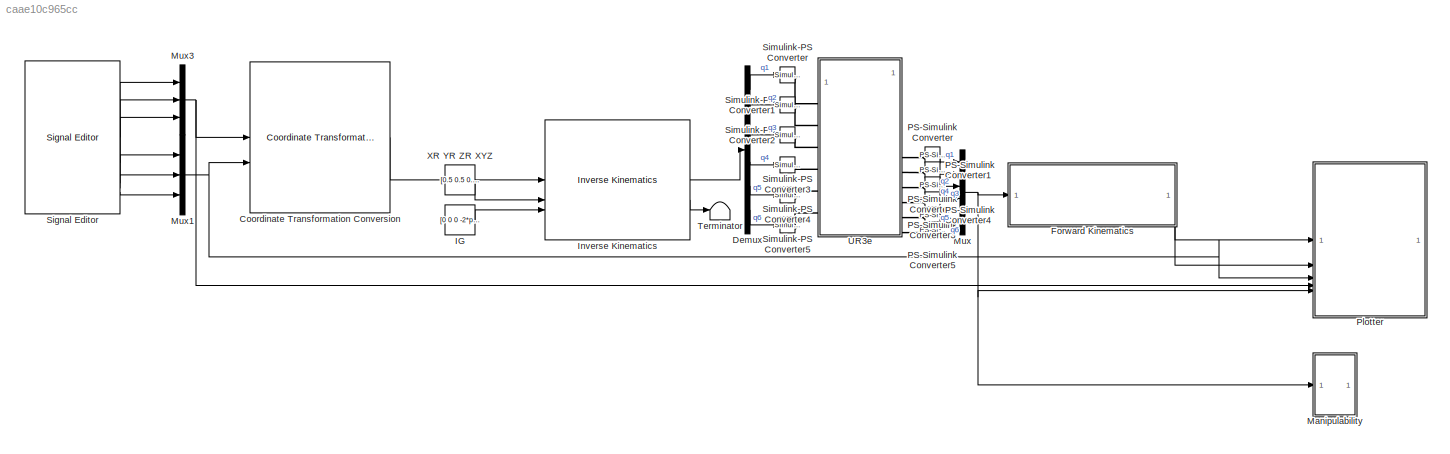
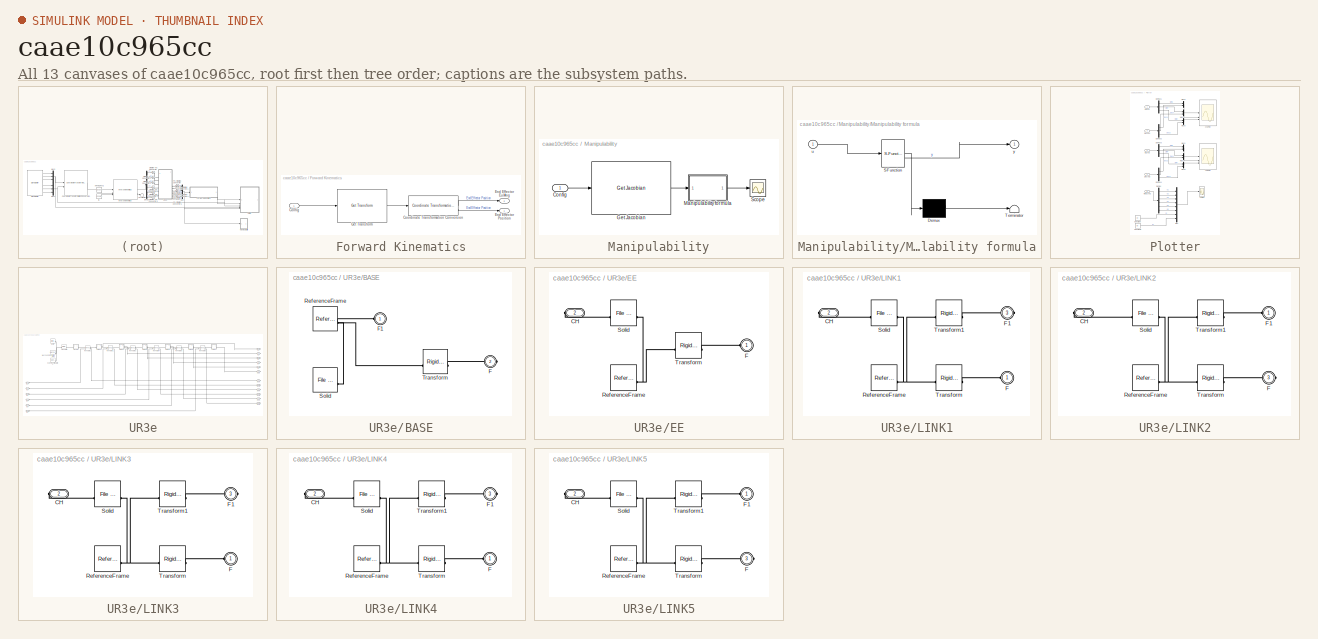
[diagram: thumbnail index - all 13 canvases of the model, root first then tree order]
MODEL slx_caae10c965cc
KIND model
CONFIG AbsTol = auto
CONFIG EnableMultiTasking = off
CONFIG FixedStep = auto
CONFIG MaxStep = auto
CONFIG MinStep = auto
CONFIG RelTol = 1e-3
CONFIG SampleTimeConstraint = Unconstrained
CONFIG SolverName = VariableStepAuto
CONFIG StartTime = 0.0
CONFIG StopTime = 8
WORKSPACE source: external: MATLAB File  (data not in archive)
BLOCK [Reference] Coordinate Transformation Conversion  REF=robotcorelib/Coordinate Transformation Conversion
  LibrarySourceBlock = robotutilslib/Coordinate Transformation Conversion
  SourceBlock = robotcorelib/Coordinate Transformation Conversion
  SourceType = robotics.slcore.internal.block.CoordinateTransformationConversion
BLOCK [Demux] Demux
  Outputs = 6
BLOCK [SubSystem] Forward Kinematics
BLOCK [Inport] Forward Kinematics/Config
BLOCK [Reference] Forward Kinematics/Coordinate Transformation Conversion  REF=robotcorelib/Coordinate Transformation Conversion
  LibrarySourceBlock = robotutilslib/Coordinate Transformation Conversion
  SourceBlock = robotcorelib/Coordinate Transformation Conversion
  SourceType = robotics.slcore.internal.block.CoordinateTransformationConversion
BLOCK [Outport] Forward Kinematics/End Effector EulAng
  Port = 2
  Unit = rad
BLOCK [Outport] Forward Kinematics/End Effector Position
  Unit = m
BLOCK [Reference] Forward Kinematics/Get Transform  REF=robotmaniplib/Get Transform
  SourceBlock = robotmaniplib/Get Transform
  SourceType = Get Transform
BLOCK [Constant] IG
  Value = [0 0 0 -2*pi 0 0]
BLOCK [Reference] Inverse Kinematics  REF=robotmaniplib/Inverse Kinematics
  SourceBlock = robotmaniplib/Inverse Kinematics
  SourceType = Inverse Kinematics
BLOCK [SubSystem] Manipulability
BLOCK [Inport] Manipulability/Config
BLOCK [Reference] Manipulability/Get Jacobian  REF=robotmaniplib/Get Jacobian
  SourceBlock = robotmaniplib/Get Jacobian
  SourceType = Get Jacobian
BLOCK [SubSystem] Manipulability/Manipulability formula
  ErrorFcn = Stateflow.Translate.translate
  PermitHierarchicalResolution = ExplicitOnly
  SFBlockType = MATLAB Function
  TreatAsAtomicUnit = on
BLOCK [Demux] Manipulability/Manipulability formula/ Demux 
  Outputs = 1
BLOCK [S-Function] Manipulability/Manipulability formula/ SFunction 
  EnableBusSupport = on
  FunctionName = sf_sfun
  PortCounts = [1 2]
  SFcnIsStateOwnerBlock = off
  SFunctionDeploymentMode = off
  Tag = Stateflow S-Function 2
BLOCK [Terminator] Manipulability/Manipulability formula/ Terminator 
BLOCK [Inport] Manipulability/Manipulability formula/u
BLOCK [Outport] Manipulability/Manipulability formula/y
BLOCK [Scope] Manipulability/Scope
  Floating = off
  NumInputPorts = 1
  ScopeSpecificationString = Simulink.scopes.TimeScopeBlockCfg('CurrentConfiguration', extmgr.ConfigurationSet(extmgr.Configuration('Core','General UI',true,'FigureColor',[1 1 1]),extmgr.Configuration('Core','Source UI',true),extmgr.Configuration('Sources','WiredSimulink',true,'DataLoggingVariableName','ScopeData1'),extmgr.Configuration('Visuals','Time Domain',true,'SerializedDisplays',{struct('MinYLimReal','0','MaxYLimReal',...<+1701ch>
BLOCK [Mux] Mux
  DisplayOption = bar
  Inputs = 6
BLOCK [Mux] Mux1
  DisplayOption = bar
  Inputs = 3
BLOCK [Mux] Mux3
  DisplayOption = bar
  Inputs = 3
BLOCK [Reference] PS-Simulink Converter  REF=nesl_utility/PS-Simulink
Converter
  SourceBlock = nesl_utility/PS-Simulink\nConverter
  SourceType = PS-Simulink\nConverter
BLOCK [Reference] PS-Simulink Converter1  REF=nesl_utility/PS-Simulink
Converter
  SourceBlock = nesl_utility/PS-Simulink\nConverter
  SourceType = PS-Simulink\nConverter
BLOCK [Reference] PS-Simulink Converter2  REF=nesl_utility/PS-Simulink
Converter
  SourceBlock = nesl_utility/PS-Simulink\nConverter
  SourceType = PS-Simulink\nConverter
BLOCK [Reference] PS-Simulink Converter3  REF=nesl_utility/PS-Simulink
Converter
  SourceBlock = nesl_utility/PS-Simulink\nConverter
  SourceType = PS-Simulink\nConverter
BLOCK [Reference] PS-Simulink Converter4  REF=nesl_utility/PS-Simulink
Converter
  SourceBlock = nesl_utility/PS-Simulink\nConverter
  SourceType = PS-Simulink\nConverter
BLOCK [Reference] PS-Simulink Converter5  REF=nesl_utility/PS-Simulink
Converter
  SourceBlock = nesl_utility/PS-Simulink\nConverter
  SourceType = PS-Simulink\nConverter
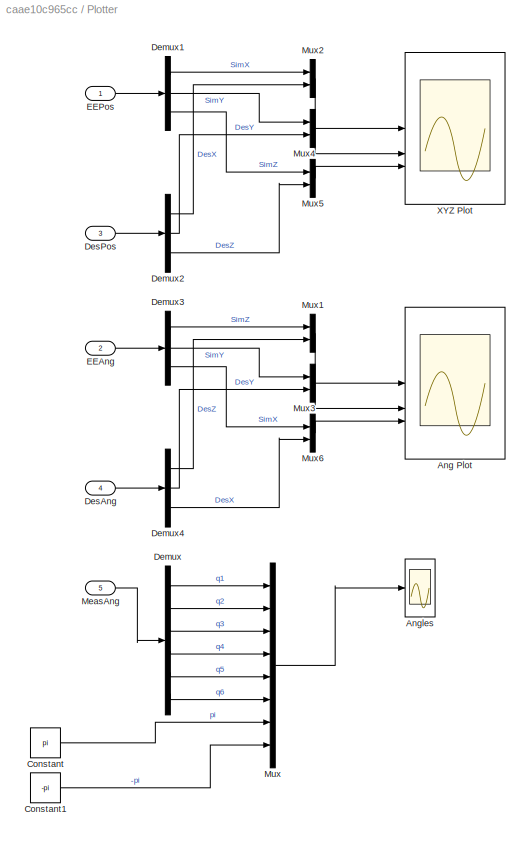
BLOCK [SubSystem] Plotter
BLOCK [Scope] Plotter/Ang Plot
  Floating = off
  NumInputPorts = 3
  ScopeSpecificationString = Simulink.scopes.TimeScopeBlockCfg('CurrentConfiguration', extmgr.ConfigurationSet(extmgr.Configuration('Core','General UI',true,'FigureColor',[1 1 1]),extmgr.Configuration('Core','Source UI',true),extmgr.Configuration('Sources','WiredSimulink',true,'DataLoggingVariableName','ScopeData1'),extmgr.Configuration('Visuals','Time Domain',true,'SerializedDisplays',{struct('MinYLimReal','-pi','MaxYLimReal...<+3735ch>
BLOCK [Scope] Plotter/Angles
  Floating = off
  NumInputPorts = 1
  ScopeSpecificationString = Simulink.scopes.TimeScopeBlockCfg('CurrentConfiguration', extmgr.ConfigurationSet(extmgr.Configuration('Core','General UI',true),extmgr.Configuration('Core','Source UI',true),extmgr.Configuration('Sources','WiredSimulink',true,'DataLoggingVariableName','ScopeData1'),extmgr.Configuration('Visuals','Time Domain',true,'SerializedDisplays',{struct('MinYLimReal','-3*pi/2','MaxYLimReal','3*pi/2','YLabel...<+1848ch>
BLOCK [Constant] Plotter/Constant
  Value = pi
BLOCK [Constant] Plotter/Constant1
  Value = -pi
BLOCK [Demux] Plotter/Demux
  Outputs = 6
BLOCK [Demux] Plotter/Demux1
  Outputs = 3
BLOCK [Demux] Plotter/Demux2
  Outputs = 3
BLOCK [Demux] Plotter/Demux3
  Outputs = 3
BLOCK [Demux] Plotter/Demux4
  Outputs = 3
BLOCK [Inport] Plotter/DesAng
  Port = 4
BLOCK [Inport] Plotter/DesPos
  Port = 3
BLOCK [Inport] Plotter/EEAng
  Port = 2
BLOCK [Inport] Plotter/EEPos
BLOCK [Inport] Plotter/MeasAng
  Port = 5
BLOCK [Mux] Plotter/Mux
  DisplayOption = bar
  Inputs = 8
BLOCK [Mux] Plotter/Mux1
  DisplayOption = bar
  Inputs = 2
BLOCK [Mux] Plotter/Mux2
  DisplayOption = bar
  Inputs = 2
BLOCK [Mux] Plotter/Mux3
  DisplayOption = bar
  Inputs = 2
BLOCK [Mux] Plotter/Mux4
  DisplayOption = bar
  Inputs = 2
BLOCK [Mux] Plotter/Mux5
  DisplayOption = bar
  Inputs = 2
BLOCK [Mux] Plotter/Mux6
  DisplayOption = bar
  Inputs = 2
BLOCK [Scope] Plotter/XYZ Plot
  Floating = off
  NumInputPorts = 3
  ScopeSpecificationString = Simulink.scopes.TimeScopeBlockCfg('CurrentConfiguration', extmgr.ConfigurationSet(extmgr.Configuration('Core','General UI',true,'FigureColor',[1 1 1]),extmgr.Configuration('Core','Source UI',true),extmgr.Configuration('Sources','WiredSimulink',true),extmgr.Configuration('Visuals','Time Domain',true,'SerializedDisplays',{struct('MinYLimReal','-0.21436','MaxYLimReal','-0.17072','YLabelReal','Positio...<+3680ch>
BLOCK [Reference] Signal Editor  REF=SignalEditorBlockLib/Signal Editor
  LibrarySourceBlock = simulink/Sources/Signal Editor
  SourceBlock = SignalEditorBlockLib/Signal Editor
  SourceType = SignalEditor
  UserDataPersistent = on
BLOCK [Reference] Simulink-PS Converter  REF=nesl_utility/Simulink-PS
Converter
  SourceBlock = nesl_utility/Simulink-PS\nConverter
  SourceType = Simulink-PS\nConverter
BLOCK [Reference] Simulink-PS Converter1  REF=nesl_utility/Simulink-PS
Converter
  SourceBlock = nesl_utility/Simulink-PS\nConverter
  SourceType = Simulink-PS\nConverter
BLOCK [Reference] Simulink-PS Converter2  REF=nesl_utility/Simulink-PS
Converter
  SourceBlock = nesl_utility/Simulink-PS\nConverter
  SourceType = Simulink-PS\nConverter
BLOCK [Reference] Simulink-PS Converter3  REF=nesl_utility/Simulink-PS
Converter
  SourceBlock = nesl_utility/Simulink-PS\nConverter
  SourceType = Simulink-PS\nConverter
BLOCK [Reference] Simulink-PS Converter4  REF=nesl_utility/Simulink-PS
Converter
  SourceBlock = nesl_utility/Simulink-PS\nConverter
  SourceType = Simulink-PS\nConverter
BLOCK [Reference] Simulink-PS Converter5  REF=nesl_utility/Simulink-PS
Converter
  SourceBlock = nesl_utility/Simulink-PS\nConverter
  SourceType = Simulink-PS\nConverter
BLOCK [Terminator] Terminator
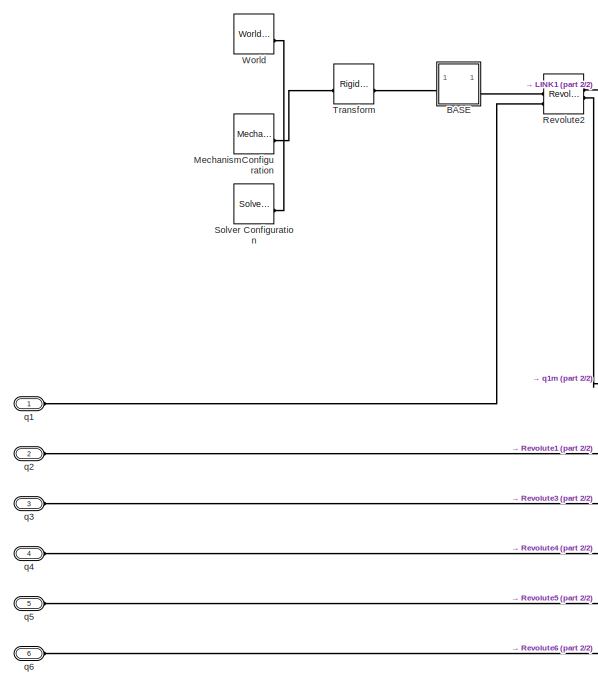
[diagram: UR3e - part 1/2, left side, full height]
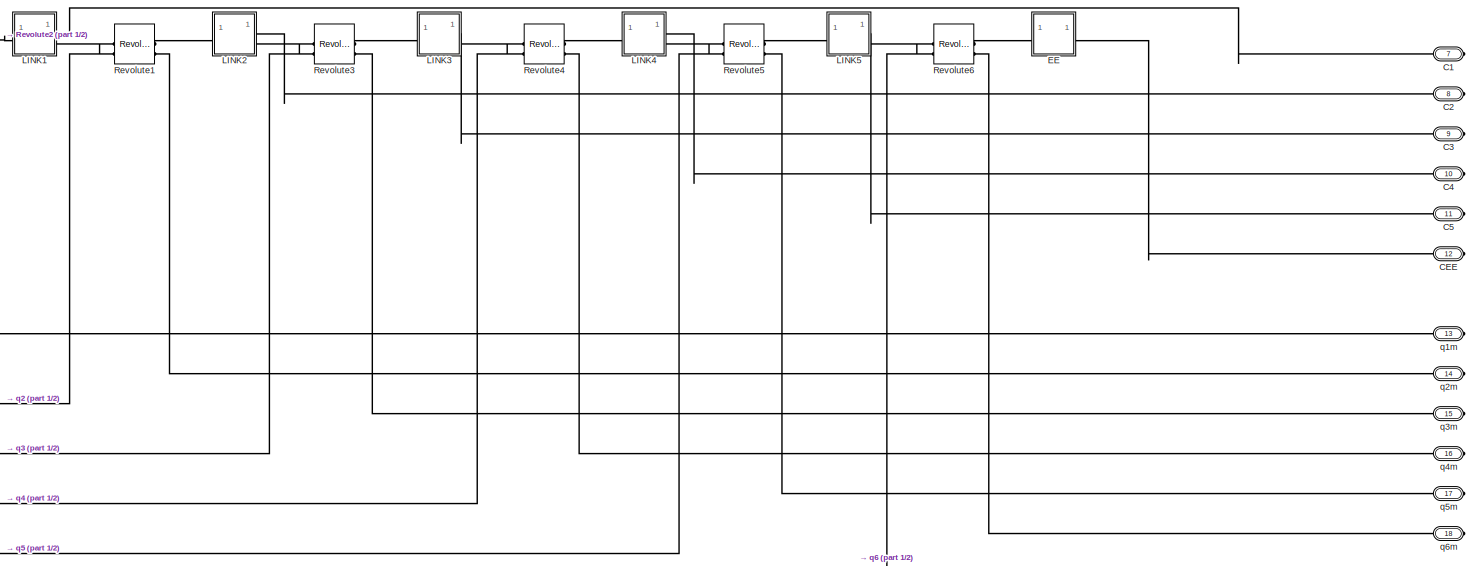
[diagram: UR3e - part 2/2, center side, full height]
BLOCK [SubSystem] UR3e
BLOCK [SubSystem] UR3e/BASE
BLOCK [PMIOPort] UR3e/BASE/F
  Port = 2
  Side = Right
BLOCK [PMIOPort] UR3e/BASE/F1
  Side = Left
BLOCK [Reference] UR3e/BASE/ReferenceFrame  REF=sm_lib/Frames and
Transforms/Reference
Frame
  SourceBlock = sm_lib/Frames and\nTransforms/Reference\nFrame
  SourceType = Reference\nFrame
BLOCK [Reference] UR3e/BASE/Solid  REF=sm_lib/Body Elements/File Solid
  SourceBlock = sm_lib/Body Elements/File Solid
  SourceType = File Solid
BLOCK [Reference] UR3e/BASE/Transform  REF=sm_lib/Frames and
Transforms/Rigid
Transform
  SourceBlock = sm_lib/Frames and\nTransforms/Rigid\nTransform
  SourceType = Rigid\nTransform
BLOCK [PMIOPort] UR3e/C1
  Port = 7
  Side = Right
BLOCK [PMIOPort] UR3e/C2
  Port = 8
  Side = Right
BLOCK [PMIOPort] UR3e/C3
  Port = 9
  Side = Right
BLOCK [PMIOPort] UR3e/C4
  Port = 10
  Side = Right
BLOCK [PMIOPort] UR3e/C5
  Port = 11
  Side = Right
BLOCK [PMIOPort] UR3e/CEE
  Port = 12
  Side = Right
BLOCK [SubSystem] UR3e/EE
BLOCK [PMIOPort] UR3e/EE/CH
  Port = 2
  Side = Right
BLOCK [PMIOPort] UR3e/EE/F
  Side = Left
BLOCK [Reference] UR3e/EE/ReferenceFrame  REF=sm_lib/Frames and
Transforms/Reference
Frame
  SourceBlock = sm_lib/Frames and\nTransforms/Reference\nFrame
  SourceType = Reference\nFrame
BLOCK [Reference] UR3e/EE/Solid  REF=sm_lib/Body Elements/File Solid
  SourceBlock = sm_lib/Body Elements/File Solid
  SourceType = File Solid
BLOCK [Reference] UR3e/EE/Transform  REF=sm_lib/Frames and
Transforms/Rigid
Transform
  SourceBlock = sm_lib/Frames and\nTransforms/Rigid\nTransform
  SourceType = Rigid\nTransform
BLOCK [SubSystem] UR3e/LINK1
BLOCK [PMIOPort] UR3e/LINK1/CH
  Port = 2
  Side = Right
BLOCK [PMIOPort] UR3e/LINK1/F
  Side = Left
BLOCK [PMIOPort] UR3e/LINK1/F1
  Port = 3
  Side = Right
BLOCK [Reference] UR3e/LINK1/ReferenceFrame  REF=sm_lib/Frames and
Transforms/Reference
Frame
  SourceBlock = sm_lib/Frames and\nTransforms/Reference\nFrame
  SourceType = Reference\nFrame
BLOCK [Reference] UR3e/LINK1/Solid  REF=sm_lib/Body Elements/File Solid
  SourceBlock = sm_lib/Body Elements/File Solid
  SourceType = File Solid
BLOCK [Reference] UR3e/LINK1/Transform  REF=sm_lib/Frames and
Transforms/Rigid
Transform
  SourceBlock = sm_lib/Frames and\nTransforms/Rigid\nTransform
  SourceType = Rigid\nTransform
BLOCK [Reference] UR3e/LINK1/Transform1  REF=sm_lib/Frames and
Transforms/Rigid
Transform
  SourceBlock = sm_lib/Frames and\nTransforms/Rigid\nTransform
  SourceType = Rigid\nTransform
BLOCK [SubSystem] UR3e/LINK2
BLOCK [PMIOPort] UR3e/LINK2/CH
  Port = 2
  Side = Right
BLOCK [PMIOPort] UR3e/LINK2/F
  Port = 3
  Side = Right
BLOCK [PMIOPort] UR3e/LINK2/F1
  Side = Left
BLOCK [Reference] UR3e/LINK2/ReferenceFrame  REF=sm_lib/Frames and
Transforms/Reference
Frame
  SourceBlock = sm_lib/Frames and\nTransforms/Reference\nFrame
  SourceType = Reference\nFrame
BLOCK [Reference] UR3e/LINK2/Solid  REF=sm_lib/Body Elements/File Solid
  SourceBlock = sm_lib/Body Elements/File Solid
  SourceType = File Solid
BLOCK [Reference] UR3e/LINK2/Transform  REF=sm_lib/Frames and
Transforms/Rigid
Transform
  SourceBlock = sm_lib/Frames and\nTransforms/Rigid\nTransform
  SourceType = Rigid\nTransform
BLOCK [Reference] UR3e/LINK2/Transform1  REF=sm_lib/Frames and
Transforms/Rigid
Transform
  SourceBlock = sm_lib/Frames and\nTransforms/Rigid\nTransform
  SourceType = Rigid\nTransform
BLOCK [SubSystem] UR3e/LINK3
BLOCK [PMIOPort] UR3e/LINK3/CH
  Port = 2
  Side = Right
BLOCK [PMIOPort] UR3e/LINK3/F
  Side = Left
BLOCK [PMIOPort] UR3e/LINK3/F1
  Port = 3
  Side = Right
BLOCK [Reference] UR3e/LINK3/ReferenceFrame  REF=sm_lib/Frames and
Transforms/Reference
Frame
  SourceBlock = sm_lib/Frames and\nTransforms/Reference\nFrame
  SourceType = Reference\nFrame
BLOCK [Reference] UR3e/LINK3/Solid  REF=sm_lib/Body Elements/File Solid
  SourceBlock = sm_lib/Body Elements/File Solid
  SourceType = File Solid
BLOCK [Reference] UR3e/LINK3/Transform  REF=sm_lib/Frames and
Transforms/Rigid
Transform
  SourceBlock = sm_lib/Frames and\nTransforms/Rigid\nTransform
  SourceType = Rigid\nTransform
BLOCK [Reference] UR3e/LINK3/Transform1  REF=sm_lib/Frames and
Transforms/Rigid
Transform
  SourceBlock = sm_lib/Frames and\nTransforms/Rigid\nTransform
  SourceType = Rigid\nTransform
BLOCK [SubSystem] UR3e/LINK4
BLOCK [PMIOPort] UR3e/LINK4/CH
  Port = 2
  Side = Right
BLOCK [PMIOPort] UR3e/LINK4/F
  Side = Left
BLOCK [PMIOPort] UR3e/LINK4/F1
  Port = 3
  Side = Right
BLOCK [Reference] UR3e/LINK4/ReferenceFrame  REF=sm_lib/Frames and
Transforms/Reference
Frame
  SourceBlock = sm_lib/Frames and\nTransforms/Reference\nFrame
  SourceType = Reference\nFrame
BLOCK [Reference] UR3e/LINK4/Solid  REF=sm_lib/Body Elements/File Solid
  SourceBlock = sm_lib/Body Elements/File Solid
  SourceType = File Solid
BLOCK [Reference] UR3e/LINK4/Transform  REF=sm_lib/Frames and
Transforms/Rigid
Transform
  SourceBlock = sm_lib/Frames and\nTransforms/Rigid\nTransform
  SourceType = Rigid\nTransform
BLOCK [Reference] UR3e/LINK4/Transform1  REF=sm_lib/Frames and
Transforms/Rigid
Transform
  SourceBlock = sm_lib/Frames and\nTransforms/Rigid\nTransform
  SourceType = Rigid\nTransform
BLOCK [SubSystem] UR3e/LINK5
BLOCK [PMIOPort] UR3e/LINK5/CH
  Port = 2
  Side = Right
BLOCK [PMIOPort] UR3e/LINK5/F
  Port = 3
  Side = Right
BLOCK [PMIOPort] UR3e/LINK5/F1
  Side = Left
BLOCK [Reference] UR3e/LINK5/ReferenceFrame  REF=sm_lib/Frames and
Transforms/Reference
Frame
  SourceBlock = sm_lib/Frames and\nTransforms/Reference\nFrame
  SourceType = Reference\nFrame
BLOCK [Reference] UR3e/LINK5/Solid  REF=sm_lib/Body Elements/File Solid
  SourceBlock = sm_lib/Body Elements/File Solid
  SourceType = File Solid
BLOCK [Reference] UR3e/LINK5/Transform  REF=sm_lib/Frames and
Transforms/Rigid
Transform
  SourceBlock = sm_lib/Frames and\nTransforms/Rigid\nTransform
  SourceType = Rigid\nTransform
BLOCK [Reference] UR3e/LINK5/Transform1  REF=sm_lib/Frames and
Transforms/Rigid
Transform
  SourceBlock = sm_lib/Frames and\nTransforms/Rigid\nTransform
  SourceType = Rigid\nTransform
BLOCK [Reference] UR3e/MechanismConfiguration  REF=sm_lib/Utilities/Mechanism
Configuration
  SourceBlock = sm_lib/Utilities/Mechanism\nConfiguration
  SourceType = Mechanism\nConfiguration
BLOCK [Reference] UR3e/Revolute1  REF=sm_lib/Joints/Revolute Joint
  SourceBlock = sm_lib/Joints/Revolute Joint
  SourceType = Revolute Joint
BLOCK [Reference] UR3e/Revolute2  REF=sm_lib/Joints/Revolute Joint
  SourceBlock = sm_lib/Joints/Revolute Joint
  SourceType = Revolute Joint
BLOCK [Reference] UR3e/Revolute3  REF=sm_lib/Joints/Revolute Joint
  SourceBlock = sm_lib/Joints/Revolute Joint
  SourceType = Revolute Joint
BLOCK [Reference] UR3e/Revolute4  REF=sm_lib/Joints/Revolute Joint
  SourceBlock = sm_lib/Joints/Revolute Joint
  SourceType = Revolute Joint
BLOCK [Reference] UR3e/Revolute5  REF=sm_lib/Joints/Revolute Joint
  SourceBlock = sm_lib/Joints/Revolute Joint
  SourceType = Revolute Joint
BLOCK [Reference] UR3e/Revolute6  REF=sm_lib/Joints/Revolute Joint
  SourceBlock = sm_lib/Joints/Revolute Joint
  SourceType = Revolute Joint
BLOCK [Reference] UR3e/Solver Configuration  REF=nesl_utility/Solver
Configuration
  SourceBlock = nesl_utility/Solver\nConfiguration
  SourceType = Solver\nConfiguration
BLOCK [Reference] UR3e/Transform  REF=sm_lib/Frames and
Transforms/Rigid
Transform
  SourceBlock = sm_lib/Frames and\nTransforms/Rigid\nTransform
  SourceType = Rigid\nTransform
BLOCK [Reference] UR3e/World  REF=sm_lib/Frames and
Transforms/World Frame
  SourceBlock = sm_lib/Frames and\nTransforms/World Frame
  SourceType = World Frame
BLOCK [PMIOPort] UR3e/q1
  Side = Left
BLOCK [PMIOPort] UR3e/q1m
  Port = 13
  Side = Right
BLOCK [PMIOPort] UR3e/q2
  Port = 2
  Side = Left
BLOCK [PMIOPort] UR3e/q2m
  Port = 14
  Side = Right
BLOCK [PMIOPort] UR3e/q3
  Port = 3
  Side = Left
BLOCK [PMIOPort] UR3e/q3m
  Port = 15
  Side = Right
BLOCK [PMIOPort] UR3e/q4
  Port = 4
  Side = Left
BLOCK [PMIOPort] UR3e/q4m
  Port = 16
  Side = Right
BLOCK [PMIOPort] UR3e/q5
  Port = 5
  Side = Left
BLOCK [PMIOPort] UR3e/q5m
  Port = 17
  Side = Right
BLOCK [PMIOPort] UR3e/q6
  Port = 6
  Side = Left
BLOCK [PMIOPort] UR3e/q6m
  Port = 18
  Side = Right
BLOCK [Constant] XR YR ZR XYZ
  Value = [0.5 0.5 0.5 1 1 1]
LINE Coordinate Transformation Conversion:1 -> Inverse Kinematics:1
LINE Demux:1 -> Simulink-PS Converter:1
LINE Demux:2 -> Simulink-PS Converter1:1
LINE Demux:3 -> Simulink-PS Converter2:1
LINE Demux:4 -> Simulink-PS Converter3:1
LINE Demux:5 -> Simulink-PS Converter4:1
LINE Demux:6 -> Simulink-PS Converter5:1
LINE Forward Kinematics/Config:1 -> Forward Kinematics/Get Transform:1
LINE Forward Kinematics/Coordinate Transformation Conversion:1 -> Forward Kinematics/End Effector EulAng:1
LINE Forward Kinematics/Coordinate Transformation Conversion:2 -> Forward Kinematics/End Effector Position:1
LINE Forward Kinematics/Get Transform:1 -> Forward Kinematics/Coordinate Transformation Conversion:1
LINE Forward Kinematics:1 -> Plotter:1
LINE Forward Kinematics:2 -> Plotter:2
LINE IG:1 -> Inverse Kinematics:3
LINE Inverse Kinematics:1 -> Demux:1
LINE Inverse Kinematics:2 -> Terminator:1
LINE Manipulability/Config:1 -> Manipulability/Get Jacobian:1
LINE Manipulability/Get Jacobian:1 -> Manipulability/Manipulability formula:1
LINE Manipulability/Manipulability formula:1 -> Manipulability/Scope:1
NET Mux1:1 -> Coordinate Transformation Conversion:2, Plotter:3
NET Mux3:1 -> Coordinate Transformation Conversion:1, Plotter:4
NET Mux:1 -> Forward Kinematics:1, Manipulability:1, Plotter:5
LINE PS-Simulink Converter1:1 -> Mux:2
LINE PS-Simulink Converter2:1 -> Mux:3
LINE PS-Simulink Converter3:1 -> Mux:4
LINE PS-Simulink Converter4:1 -> Mux:5
LINE PS-Simulink Converter5:1 -> Mux:6
LINE PS-Simulink Converter:1 -> Mux:1
LINE Plotter/Constant1:1 -> Plotter/Mux:8
LINE Plotter/Constant:1 -> Plotter/Mux:7
LINE Plotter/Demux1:1 -> Plotter/Mux2:1
LINE Plotter/Demux1:2 -> Plotter/Mux4:1
LINE Plotter/Demux1:3 -> Plotter/Mux5:1
LINE Plotter/Demux2:1 -> Plotter/Mux2:2
LINE Plotter/Demux2:2 -> Plotter/Mux4:2
LINE Plotter/Demux2:3 -> Plotter/Mux5:2
LINE Plotter/Demux3:1 -> Plotter/Mux1:1
LINE Plotter/Demux3:2 -> Plotter/Mux3:1
LINE Plotter/Demux3:3 -> Plotter/Mux6:1
LINE Plotter/Demux4:1 -> Plotter/Mux1:2
LINE Plotter/Demux4:2 -> Plotter/Mux3:2
LINE Plotter/Demux4:3 -> Plotter/Mux6:2
LINE Plotter/Demux:1 -> Plotter/Mux:1
LINE Plotter/Demux:2 -> Plotter/Mux:2
LINE Plotter/Demux:3 -> Plotter/Mux:3
LINE Plotter/Demux:4 -> Plotter/Mux:4
LINE Plotter/Demux:5 -> Plotter/Mux:5
LINE Plotter/Demux:6 -> Plotter/Mux:6
LINE Plotter/DesAng:1 -> Plotter/Demux4:1
LINE Plotter/DesPos:1 -> Plotter/Demux2:1
LINE Plotter/EEAng:1 -> Plotter/Demux3:1
LINE Plotter/EEPos:1 -> Plotter/Demux1:1
LINE Plotter/MeasAng:1 -> Plotter/Demux:1
LINE Plotter/Mux1:1 -> Plotter/Ang Plot:1
LINE Plotter/Mux2:1 -> Plotter/XYZ Plot:1
LINE Plotter/Mux3:1 -> Plotter/Ang Plot:2
LINE Plotter/Mux4:1 -> Plotter/XYZ Plot:2
LINE Plotter/Mux5:1 -> Plotter/XYZ Plot:3
LINE Plotter/Mux6:1 -> Plotter/Ang Plot:3
LINE Plotter/Mux:1 -> Plotter/Angles:1
LINE Signal Editor:1 -> Mux3:1
LINE Signal Editor:2 -> Mux3:2
LINE Signal Editor:3 -> Mux3:3
LINE Signal Editor:4 -> Mux1:1
LINE Signal Editor:5 -> Mux1:2
LINE Signal Editor:6 -> Mux1:3
LINE XR YR ZR XYZ:1 -> Inverse Kinematics:2
PLINE PS-Simulink Converter1:LConn1 -- UR3e:RConn8
PLINE PS-Simulink Converter2:LConn1 -- UR3e:RConn9
PLINE PS-Simulink Converter3:LConn1 -- UR3e:RConn10
PLINE PS-Simulink Converter4:LConn1 -- UR3e:RConn11
PLINE PS-Simulink Converter5:LConn1 -- UR3e:RConn12
PLINE PS-Simulink Converter:LConn1 -- UR3e:RConn7
PLINE Simulink-PS Converter1:RConn1 -- UR3e:LConn2
PLINE Simulink-PS Converter2:RConn1 -- UR3e:LConn3
PLINE Simulink-PS Converter3:RConn1 -- UR3e:LConn4
PLINE Simulink-PS Converter4:RConn1 -- UR3e:LConn5
PLINE Simulink-PS Converter5:RConn1 -- UR3e:LConn6
PLINE Simulink-PS Converter:RConn1 -- UR3e:LConn1
PNET net1: UR3e/BASE/F1:RConn1 -- UR3e/BASE/ReferenceFrame:RConn1 -- UR3e/BASE/Solid:RConn1 -- UR3e/BASE/Transform:LConn1
PLINE UR3e/BASE/F:RConn1 -- UR3e/BASE/Transform:RConn1
PLINE UR3e/BASE:LConn1 -- UR3e/Transform:RConn1
PLINE UR3e/BASE:RConn1 -- UR3e/Revolute2:LConn1
PLINE UR3e/C1:RConn1 -- UR3e/LINK1:RConn1
PLINE UR3e/C2:RConn1 -- UR3e/LINK2:RConn1
PLINE UR3e/C3:RConn1 -- UR3e/LINK3:RConn1
PLINE UR3e/C4:RConn1 -- UR3e/LINK4:RConn1
PLINE UR3e/C5:RConn1 -- UR3e/LINK5:RConn1
PLINE UR3e/CEE:RConn1 -- UR3e/EE:RConn1
PLINE UR3e/EE/CH:RConn1 -- UR3e/EE/Solid:LConn1
PLINE UR3e/EE/F:RConn1 -- UR3e/EE/Transform:RConn1
PNET net2: UR3e/EE/ReferenceFrame:RConn1 -- UR3e/EE/Solid:RConn1 -- UR3e/EE/Transform:LConn1
PLINE UR3e/EE:LConn1 -- UR3e/Revolute6:RConn1
PLINE UR3e/LINK1/CH:RConn1 -- UR3e/LINK1/Solid:LConn1
PLINE UR3e/LINK1/F1:RConn1 -- UR3e/LINK1/Transform1:RConn1
PLINE UR3e/LINK1/F:RConn1 -- UR3e/LINK1/Transform:RConn1
PNET net3: UR3e/LINK1/ReferenceFrame:RConn1 -- UR3e/LINK1/Solid:RConn1 -- UR3e/LINK1/Transform1:LConn1 -- UR3e/LINK1/Transform:LConn1
PLINE UR3e/LINK1:LConn1 -- UR3e/Revolute2:RConn1
PLINE UR3e/LINK1:RConn2 -- UR3e/Revolute1:LConn1
PLINE UR3e/LINK2/CH:RConn1 -- UR3e/LINK2/Solid:LConn1
PLINE UR3e/LINK2/F1:RConn1 -- UR3e/LINK2/Transform1:RConn1
PLINE UR3e/LINK2/F:RConn1 -- UR3e/LINK2/Transform:RConn1
PNET net4: UR3e/LINK2/ReferenceFrame:RConn1 -- UR3e/LINK2/Solid:RConn1 -- UR3e/LINK2/Transform1:LConn1 -- UR3e/LINK2/Transform:LConn1
PLINE UR3e/LINK2:LConn1 -- UR3e/Revolute1:RConn1
PLINE UR3e/LINK2:RConn2 -- UR3e/Revolute3:LConn1
PLINE UR3e/LINK3/CH:RConn1 -- UR3e/LINK3/Solid:LConn1
PLINE UR3e/LINK3/F1:RConn1 -- UR3e/LINK3/Transform1:RConn1
PLINE UR3e/LINK3/F:RConn1 -- UR3e/LINK3/Transform:RConn1
PNET net5: UR3e/LINK3/ReferenceFrame:RConn1 -- UR3e/LINK3/Solid:RConn1 -- UR3e/LINK3/Transform1:LConn1 -- UR3e/LINK3/Transform:LConn1
PLINE UR3e/LINK3:LConn1 -- UR3e/Revolute3:RConn1
PLINE UR3e/LINK3:RConn2 -- UR3e/Revolute4:LConn1
PLINE UR3e/LINK4/CH:RConn1 -- UR3e/LINK4/Solid:LConn1
PLINE UR3e/LINK4/F1:RConn1 -- UR3e/LINK4/Transform1:RConn1
PLINE UR3e/LINK4/F:RConn1 -- UR3e/LINK4/Transform:RConn1
PNET net6: UR3e/LINK4/ReferenceFrame:RConn1 -- UR3e/LINK4/Solid:RConn1 -- UR3e/LINK4/Transform1:LConn1 -- UR3e/LINK4/Transform:LConn1
PLINE UR3e/LINK4:LConn1 -- UR3e/Revolute4:RConn1
PLINE UR3e/LINK4:RConn2 -- UR3e/Revolute5:LConn1
PLINE UR3e/LINK5/CH:RConn1 -- UR3e/LINK5/Solid:LConn1
PLINE UR3e/LINK5/F1:RConn1 -- UR3e/LINK5/Transform1:RConn1
PLINE UR3e/LINK5/F:RConn1 -- UR3e/LINK5/Transform:RConn1
PNET net7: UR3e/LINK5/ReferenceFrame:RConn1 -- UR3e/LINK5/Solid:RConn1 -- UR3e/LINK5/Transform1:LConn1 -- UR3e/LINK5/Transform:LConn1
PLINE UR3e/LINK5:LConn1 -- UR3e/Revolute5:RConn1
PLINE UR3e/LINK5:RConn2 -- UR3e/Revolute6:LConn1
PNET net8: UR3e/MechanismConfiguration:RConn1 -- UR3e/Solver Configuration:RConn1 -- UR3e/Transform:LConn1 -- UR3e/World:RConn1
PLINE UR3e/Revolute1:LConn2 -- UR3e/q2:RConn1
PLINE UR3e/Revolute1:RConn2 -- UR3e/q2m:RConn1
PLINE UR3e/Revolute2:LConn2 -- UR3e/q1:RConn1
PLINE UR3e/Revolute2:RConn2 -- UR3e/q1m:RConn1
PLINE UR3e/Revolute3:LConn2 -- UR3e/q3:RConn1
PLINE UR3e/Revolute3:RConn2 -- UR3e/q3m:RConn1
PLINE UR3e/Revolute4:LConn2 -- UR3e/q4:RConn1
PLINE UR3e/Revolute4:RConn2 -- UR3e/q4m:RConn1
PLINE UR3e/Revolute5:LConn2 -- UR3e/q5:RConn1
PLINE UR3e/Revolute5:RConn2 -- UR3e/q5m:RConn1
PLINE UR3e/Revolute6:LConn2 -- UR3e/q6:RConn1
PLINE UR3e/Revolute6:RConn2 -- UR3e/q6m:RConn1
note: NET lines group one-source signal fan-out (src -> all destinations, sorted); 1:1 wires keep LINE; PNET lines group multi-terminal physical nets as a canonical sorted terminal list (undirected conserving connections); 2-terminal nets keep the pairwise PLINE form
CHART Manipulability/Manipulability formula states=1 transitions=1
  STATE_LABEL 'eML_blk_kernel()'
  STATE_LABEL "SCRIPT:\nfunction y = fcn(u)\n\ny = sqrt(det(u*u'));"
CHART  states=0 transitions=0
